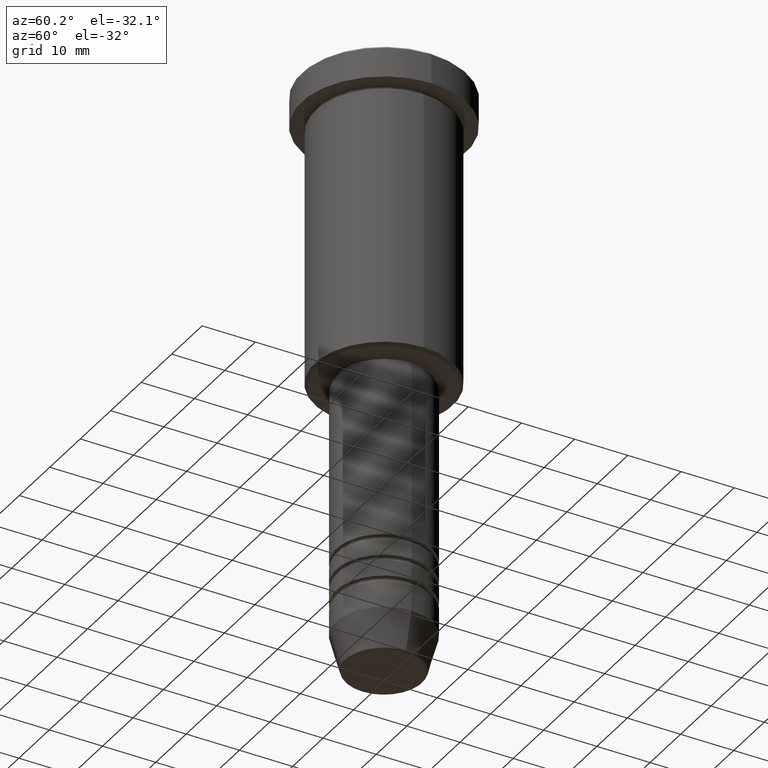
[diagram: clean part render]
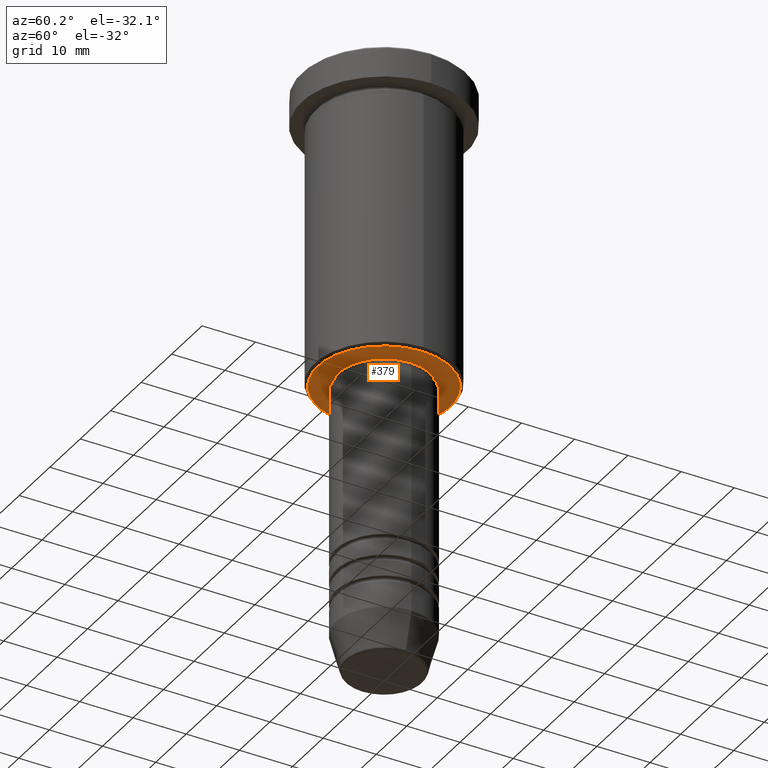
[diagram: same view with one face highlighted and labeled with its STEP entity id]
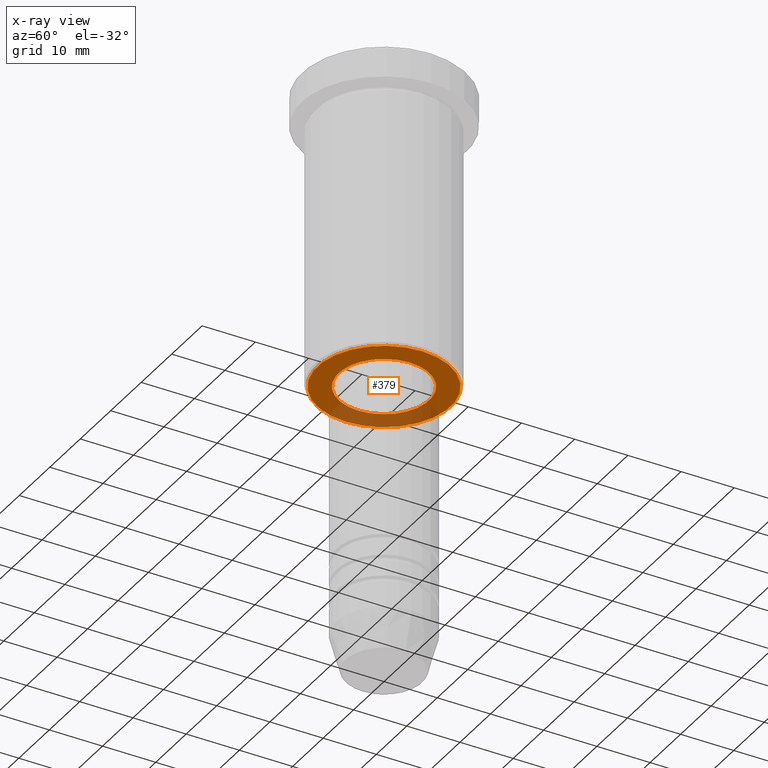
[diagram: x-ray of the same camera — body ghosted, the highlighted face saturated]
A machine part, auxiliary view. The second image highlights one B-rep face of the part: STEP entity #379.
The next image is the same camera in x-ray: the body ghosted, the highlighted face saturated — about 28% of this face is hidden behind the body in this view.
In plain terms, the highlighted planar face has unit normal (0, 0, -1).
Its self-contained STEP definition (entity closure, byte-faithful):
#47 = EDGE_CURVE ( 'NONE', #1148, #174, #988, .T. ) ;
#72 = PLANE ( 'NONE',  #438 ) ;
#100 = CARTESIAN_POINT ( 'NONE',  ( 0.000000000000000000, 0.000000000000000000, -56.00000000000000711 ) ) ;
#124 = CIRCLE ( 'NONE', #1037, 8.500000000000000000 ) ;
#153 = VERTEX_POINT ( 'NONE', #270 ) ;
#174 = VERTEX_POINT ( 'NONE', #378 ) ;
#268 = DIRECTION ( 'NONE',  ( 1.000000000000000000, 0.000000000000000000, 0.000000000000000000 ) ) ;
#270 = CARTESIAN_POINT ( 'NONE',  ( 8.500000000000000000, 0.000000000000000000, -56.00000000000000000 ) ) ;
#296 = ORIENTED_EDGE ( 'NONE', *, *, #1012, .T. ) ;
#378 = CARTESIAN_POINT ( 'NONE',  ( 12.49999999999999645, 0.000000000000000000, -56.00000000000000711 ) ) ;
#379 = ADVANCED_FACE ( 'NONE', ( #869, #1156 ), #72, .T. ) ;
#427 = CARTESIAN_POINT ( 'NONE',  ( 0.000000000000000000, 13.00000000000000000, -56.00000000000000711 ) ) ;
#438 = AXIS2_PLACEMENT_3D ( 'NONE', #427, #686, #697 ) ;
#445 = DIRECTION ( 'NONE',  ( -1.000000000000000000, 0.000000000000000000, 0.000000000000000000 ) ) ;
#465 = CARTESIAN_POINT ( 'NONE',  ( -12.49999999999999645, 1.561424668912875308E-15, -56.00000000000000711 ) ) ;
#470 = EDGE_CURVE ( 'NONE', #153, #1168, #704, .T. ) ;
#476 = AXIS2_PLACEMENT_3D ( 'NONE', #100, #565, #445 ) ;
#527 = DIRECTION ( 'NONE',  ( 1.000000000000000000, 0.000000000000000000, 0.000000000000000000 ) ) ;
#552 = AXIS2_PLACEMENT_3D ( 'NONE', #635, #1106, #268 ) ;
#565 = DIRECTION ( 'NONE',  ( 0.000000000000000000, 0.000000000000000000, -1.000000000000000000 ) ) ;
#635 = CARTESIAN_POINT ( 'NONE',  ( 0.000000000000000000, 0.000000000000000000, -56.00000000000000000 ) ) ;
#640 = CARTESIAN_POINT ( 'NONE',  ( 0.000000000000000000, 0.000000000000000000, -56.00000000000000711 ) ) ;
#653 = EDGE_LOOP ( 'NONE', ( #1097, #296 ) ) ;
#686 = DIRECTION ( 'NONE',  ( 0.000000000000000000, 0.000000000000000000, -1.000000000000000000 ) ) ;
#697 = DIRECTION ( 'NONE',  ( -1.000000000000000000, 0.000000000000000000, -0.000000000000000000 ) ) ;
#704 = CIRCLE ( 'NONE', #552, 8.500000000000000000 ) ;
#730 = DIRECTION ( 'NONE',  ( 0.000000000000000000, 0.000000000000000000, -1.000000000000000000 ) ) ;
#810 = DIRECTION ( 'NONE',  ( -1.000000000000000000, 0.000000000000000000, 0.000000000000000000 ) ) ;
#826 = EDGE_LOOP ( 'NONE', ( #1025, #860 ) ) ;
#860 = ORIENTED_EDGE ( 'NONE', *, *, #47, .T. ) ;
#863 = CIRCLE ( 'NONE', #958, 12.49999999999999645 ) ;
#869 = FACE_OUTER_BOUND ( 'NONE', #826, .T. ) ;
#958 = AXIS2_PLACEMENT_3D ( 'NONE', #640, #730, #810 ) ;
#963 = DIRECTION ( 'NONE',  ( -0.000000000000000000, -0.000000000000000000, 1.000000000000000000 ) ) ;
#988 = CIRCLE ( 'NONE', #476, 12.49999999999999645 ) ;
#1012 = EDGE_CURVE ( 'NONE', #1168, #153, #124, .T. ) ;
#1025 = ORIENTED_EDGE ( 'NONE', *, *, #1137, .T. ) ;
#1037 = AXIS2_PLACEMENT_3D ( 'NONE', #1169, #963, #527 ) ;
#1095 = CARTESIAN_POINT ( 'NONE',  ( -8.500000000000000000, 1.040949779275250140E-15, -56.00000000000000000 ) ) ;
#1097 = ORIENTED_EDGE ( 'NONE', *, *, #470, .T. ) ;
#1106 = DIRECTION ( 'NONE',  ( -0.000000000000000000, -0.000000000000000000, 1.000000000000000000 ) ) ;
#1137 = EDGE_CURVE ( 'NONE', #174, #1148, #863, .T. ) ;
#1148 = VERTEX_POINT ( 'NONE', #465 ) ;
#1156 = FACE_BOUND ( 'NONE', #653, .T. ) ;
#1168 = VERTEX_POINT ( 'NONE', #1095 ) ;
#1169 = CARTESIAN_POINT ( 'NONE',  ( 0.000000000000000000, 0.000000000000000000, -56.00000000000000000 ) ) ;